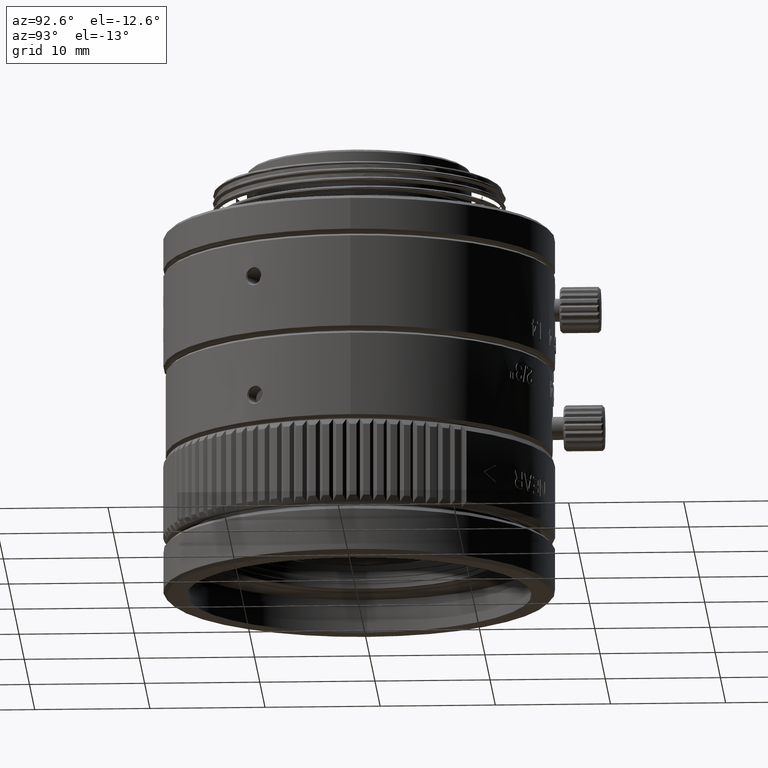
[diagram: clean part render]
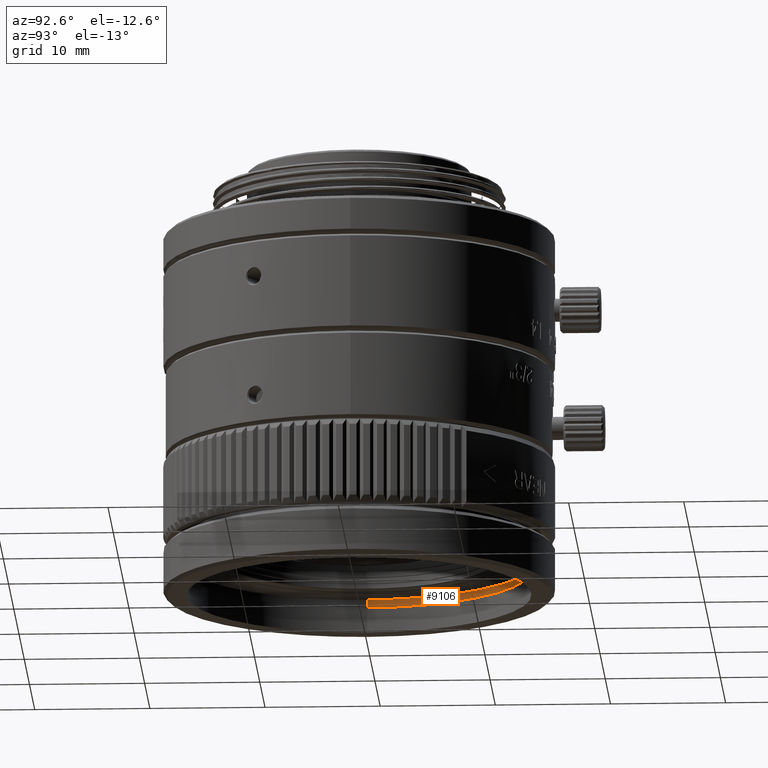
[diagram: same view with one face highlighted and labeled with its STEP entity id]
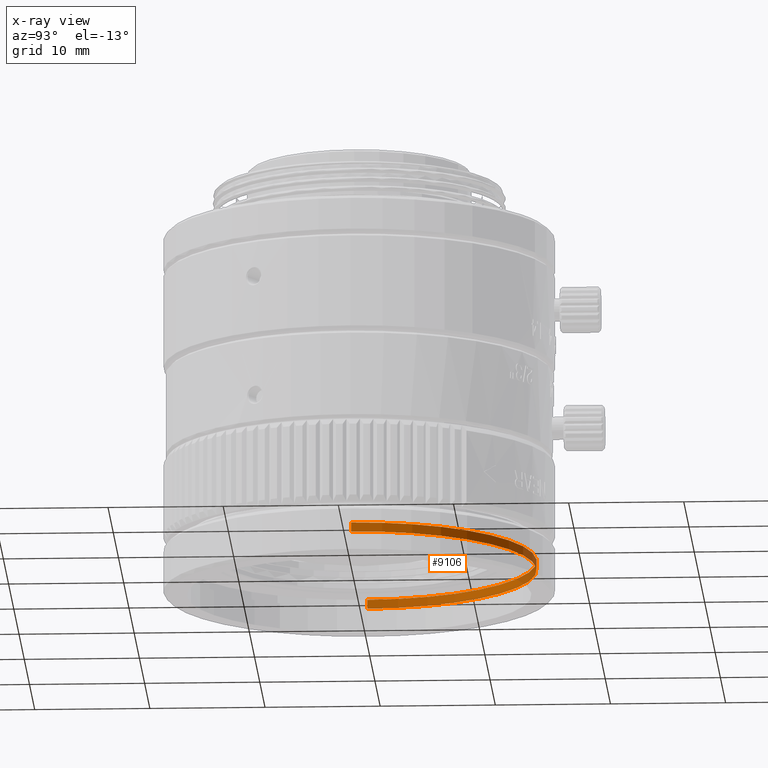
[diagram: x-ray of the same camera — body ghosted, the highlighted face saturated]
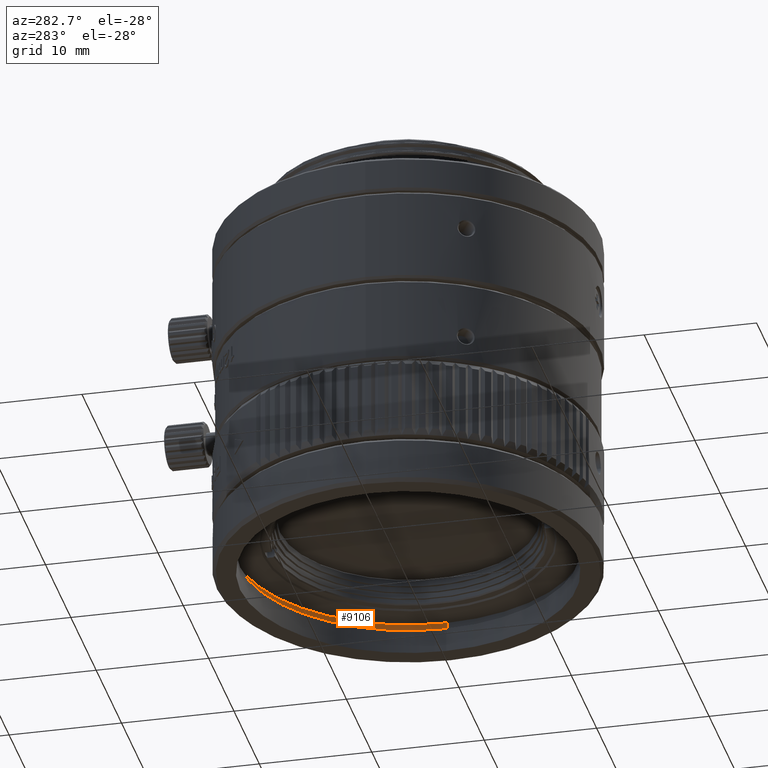
[diagram: same view with one face highlighted and labeled with its STEP entity id]
A machine part, auxiliary view. The second image highlights one B-rep face of the part: STEP entity #9106.
The next image is the same camera in x-ray: the body ghosted, the highlighted face saturated — about 4% of this face is hidden behind the body in this view.
A second angle (auxiliary view) of the same face is appended — the face is thin or edge-on in the first view.
In plain terms, the highlighted cylindrical surface (partial cylindrical patch) has radius 15.4 mm, axis along (0, 0, -1).
Its self-contained STEP definition (entity closure, byte-faithful):
#9106 = ADVANCED_FACE ( 'NONE', ( #43395 ), #57386, .F. ) ;
#13112 = VECTOR ( 'NONE', #29676, 1000.000000000000000 ) ;
#13644 = EDGE_CURVE ( 'NONE', #22222, #27655, #41012, .T. ) ;
#17038 = DIRECTION ( 'NONE',  ( -1.000000000000000000, 0.000000000000000000, 0.000000000000000000 ) ) ;
#21115 = CARTESIAN_POINT ( 'NONE',  ( 0.000000000000000000, 0.000000000000000000, -10.47006162799431728 ) ) ;
#21360 = AXIS2_PLACEMENT_3D ( 'NONE', #46230, #24851, #24571 ) ;
#22222 = VERTEX_POINT ( 'NONE', #34099 ) ;
#22362 = DIRECTION ( 'NONE',  ( -1.000000000000000000, 0.000000000000000000, 0.000000000000000000 ) ) ;
#24571 = DIRECTION ( 'NONE',  ( -1.000000000000000000, 0.000000000000000000, 0.000000000000000000 ) ) ;
#24851 = DIRECTION ( 'NONE',  ( 0.000000000000000000, 0.000000000000000000, -1.000000000000000000 ) ) ;
#26773 = ORIENTED_EDGE ( 'NONE', *, *, #48176, .T. ) ;
#27655 = VERTEX_POINT ( 'NONE', #41439 ) ;
#27859 = ORIENTED_EDGE ( 'NONE', *, *, #13644, .F. ) ;
#29676 = DIRECTION ( 'NONE',  ( 0.000000000000000000, 0.000000000000000000, -1.000000000000000000 ) ) ;
#29738 = LINE ( 'NONE', #42637, #48495 ) ;
#30306 = CARTESIAN_POINT ( 'NONE',  ( 0.000000000000000000, 0.000000000000000000, -11.27006162799564670 ) ) ;
#34099 = CARTESIAN_POINT ( 'NONE',  ( -15.40000000000000036, 0.000000000000000000, -10.47006162799431728 ) ) ;
#36455 = AXIS2_PLACEMENT_3D ( 'NONE', #30306, #48711, #22362 ) ;
#36796 = VERTEX_POINT ( 'NONE', #48334 ) ;
#36934 = VERTEX_POINT ( 'NONE', #43047 ) ;
#37429 = CIRCLE ( 'NONE', #36455, 15.40000000000000036 ) ;
#37656 = AXIS2_PLACEMENT_3D ( 'NONE', #21115, #38726, #17038 ) ;
#38477 = EDGE_CURVE ( 'NONE', #36796, #36934, #37429, .T. ) ;
#38726 = DIRECTION ( 'NONE',  ( 0.000000000000000000, 0.000000000000000000, -1.000000000000000000 ) ) ;
#39049 = ORIENTED_EDGE ( 'NONE', *, *, #38477, .F. ) ;
#41012 = CIRCLE ( 'NONE', #21360, 15.40000000000000036 ) ;
#41439 = CARTESIAN_POINT ( 'NONE',  ( 15.40000000000000036, 1.885956070686923806E-15, -10.47006162799431728 ) ) ;
#42637 = CARTESIAN_POINT ( 'NONE',  ( -15.40000000000000036, 0.000000000000000000, -10.47006162799431728 ) ) ;
#42927 = DIRECTION ( 'NONE',  ( 0.000000000000000000, 0.000000000000000000, -1.000000000000000000 ) ) ;
#43047 = CARTESIAN_POINT ( 'NONE',  ( -15.40000000000000036, 0.000000000000000000, -11.27006162799564670 ) ) ;
#43395 = FACE_OUTER_BOUND ( 'NONE', #54459, .T. ) ;
#46230 = CARTESIAN_POINT ( 'NONE',  ( 0.000000000000000000, 0.000000000000000000, -10.47006162799431728 ) ) ;
#48176 = EDGE_CURVE ( 'NONE', #22222, #36934, #29738, .T. ) ;
#48334 = CARTESIAN_POINT ( 'NONE',  ( 15.40000000000000036, 1.885956070686923806E-15, -11.27006162799564670 ) ) ;
#48374 = CARTESIAN_POINT ( 'NONE',  ( 15.40000000000000036, 1.885956070686923806E-15, -10.47006162799431728 ) ) ;
#48495 = VECTOR ( 'NONE', #42927, 1000.000000000000000 ) ;
#48711 = DIRECTION ( 'NONE',  ( -0.000000000000000000, -0.000000000000000000, 1.000000000000000000 ) ) ;
#50202 = EDGE_CURVE ( 'NONE', #27655, #36796, #53054, .T. ) ;
#50894 = ORIENTED_EDGE ( 'NONE', *, *, #50202, .F. ) ;
#53054 = LINE ( 'NONE', #48374, #13112 ) ;
#54459 = EDGE_LOOP ( 'NONE', ( #50894, #27859, #26773, #39049 ) ) ;
#57386 = CYLINDRICAL_SURFACE ( 'NONE', #37656, 15.40000000000000036 ) ;